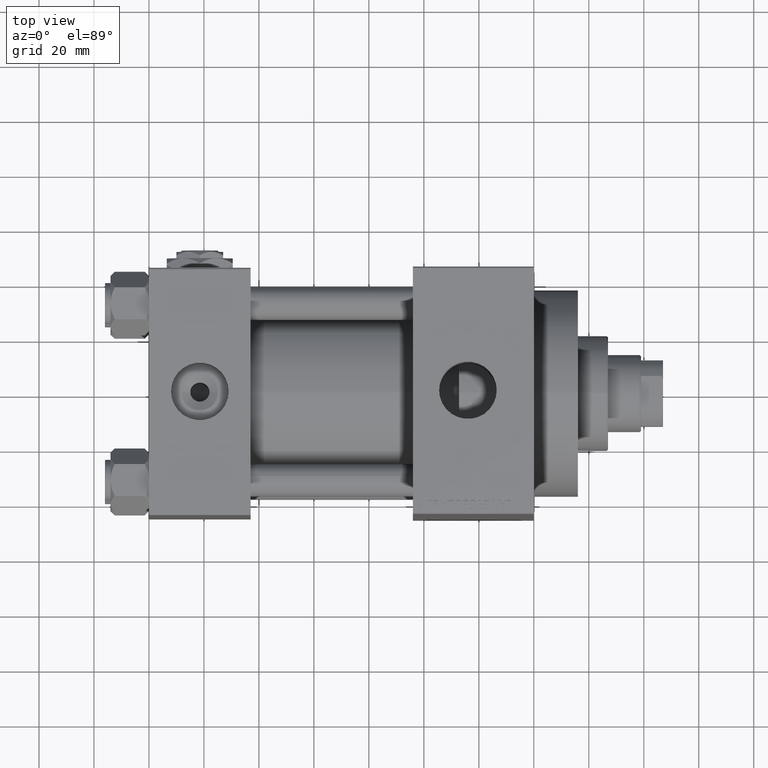
[diagram: clean part render]
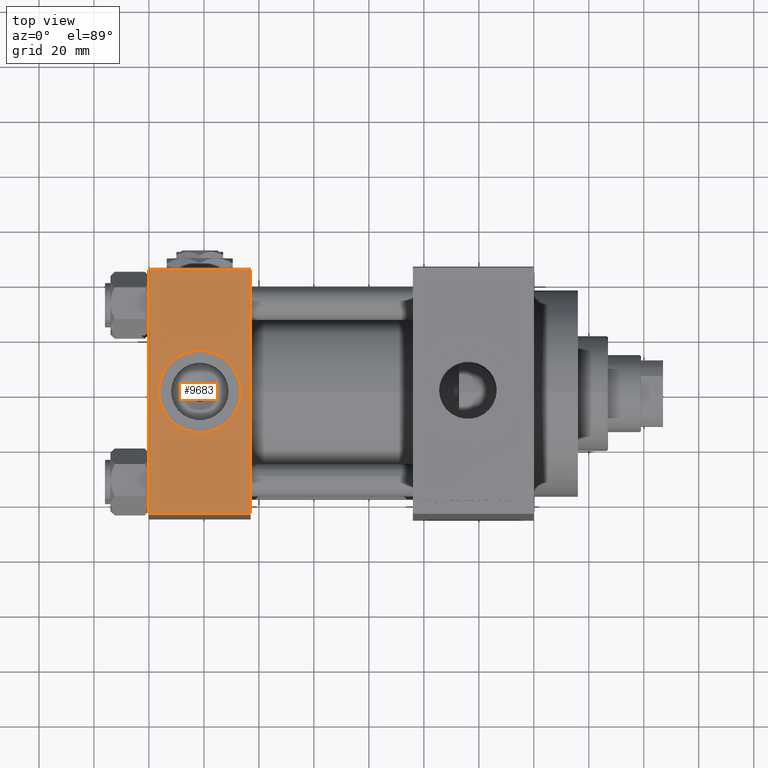
[diagram: same view with one face highlighted and labeled with its STEP entity id]
A machine part, top view. The second image highlights one B-rep face of the part: STEP entity #9683.
In plain terms, the highlighted planar face has unit normal (0, 0, -1).
Its self-contained STEP definition (entity closure, byte-faithful):
#191 = EDGE_CURVE ( 'NONE', #15757, #7256, #12706, .T. ) ;
#1018 = CARTESIAN_POINT ( 'NONE',  ( 37.00000000000000000, 44.99999999999998579, 45.00000000000001421 ) ) ;
#1613 = VERTEX_POINT ( 'NONE', #29606 ) ;
#2000 = CIRCLE ( 'NONE', #13887, 15.00000000000000355 ) ;
#2224 = DIRECTION ( 'NONE',  ( 1.000000000000000000, 0.000000000000000000, 0.000000000000000000 ) ) ;
#2847 = ORIENTED_EDGE ( 'NONE', *, *, #191, .T. ) ;
#4998 = DIRECTION ( 'NONE',  ( 0.000000000000000000, -1.000000000000000000, -1.541976423090495387E-16 ) ) ;
#5940 = EDGE_CURVE ( 'NONE', #34713, #36108, #9208, .T. ) ;
#6201 = CARTESIAN_POINT ( 'NONE',  ( 18.50000000000000000, -8.673617379884038628E-15, 45.00000000000000711 ) ) ;
#6848 = DIRECTION ( 'NONE',  ( 0.000000000000000000, 1.541976423090495633E-16, -1.000000000000000000 ) ) ;
#7256 = VERTEX_POINT ( 'NONE', #23281 ) ;
#8526 = VECTOR ( 'NONE', #16373, 1000.000000000000000 ) ;
#9139 = CIRCLE ( 'NONE', #47063, 15.00000000000000355 ) ;
#9208 = LINE ( 'NONE', #1018, #36823 ) ;
#9226 = EDGE_LOOP ( 'NONE', ( #37231, #34209 ) ) ;
#9323 = AXIS2_PLACEMENT_3D ( 'NONE', #25654, #6848, #26149 ) ;
#9683 = ADVANCED_FACE ( 'NONE', ( #14271, #29369 ), #44456, .F. ) ;
#11638 = VECTOR ( 'NONE', #31876, 1000.000000000000000 ) ;
#12438 = CARTESIAN_POINT ( 'NONE',  ( 0.000000000000000000, 44.49999999999998579, 45.00000000000001421 ) ) ;
#12706 = LINE ( 'NONE', #27800, #31172 ) ;
#13887 = AXIS2_PLACEMENT_3D ( 'NONE', #6201, #24038, #2224 ) ;
#14271 = FACE_BOUND ( 'NONE', #9226, .T. ) ;
#15155 = ORIENTED_EDGE ( 'NONE', *, *, #5940, .F. ) ;
#15757 = VERTEX_POINT ( 'NONE', #12438 ) ;
#16373 = DIRECTION ( 'NONE',  ( -1.000000000000000000, 0.000000000000000000, 0.000000000000000000 ) ) ;
#16536 = CARTESIAN_POINT ( 'NONE',  ( 18.50000000000000000, -8.673617379884038628E-15, 45.00000000000000711 ) ) ;
#17490 = DIRECTION ( 'NONE',  ( 1.000000000000000000, 0.000000000000000000, 0.000000000000000000 ) ) ;
#18986 = CARTESIAN_POINT ( 'NONE',  ( 3.499999999999997780, -6.836647181163008250E-15, 45.00000000000000711 ) ) ;
#20075 = VERTEX_POINT ( 'NONE', #18986 ) ;
#21951 = EDGE_CURVE ( 'NONE', #20075, #1613, #9139, .T. ) ;
#23281 = CARTESIAN_POINT ( 'NONE',  ( 0.000000000000000000, -44.49999999999995737, 45.00000000000000000 ) ) ;
#23951 = ORIENTED_EDGE ( 'NONE', *, *, #29424, .T. ) ;
#24038 = DIRECTION ( 'NONE',  ( 0.000000000000000000, 0.000000000000000000, 1.000000000000000000 ) ) ;
#25654 = CARTESIAN_POINT ( 'NONE',  ( 37.00000000000000000, 44.99999999999998579, 45.00000000000001421 ) ) ;
#25831 = CARTESIAN_POINT ( 'NONE',  ( 37.00000000000000000, 44.49999999999998579, 45.00000000000001421 ) ) ;
#26149 = DIRECTION ( 'NONE',  ( 0.000000000000000000, 1.000000000000000000, 1.541976423090495633E-16 ) ) ;
#26656 = EDGE_CURVE ( 'NONE', #34713, #15757, #46563, .T. ) ;
#27800 = CARTESIAN_POINT ( 'NONE',  ( 0.000000000000000000, 44.99999999999998579, 45.00000000000001421 ) ) ;
#27991 = CARTESIAN_POINT ( 'NONE',  ( 0.000000000000000000, 44.49999999999998579, 45.00000000000001421 ) ) ;
#28140 = EDGE_LOOP ( 'NONE', ( #2847, #23951, #15155, #41065 ) ) ;
#29369 = FACE_OUTER_BOUND ( 'NONE', #28140, .T. ) ;
#29424 = EDGE_CURVE ( 'NONE', #7256, #36108, #31647, .T. ) ;
#29606 = CARTESIAN_POINT ( 'NONE',  ( 33.50000000000000000, -8.673617379884038628E-15, 45.00000000000000711 ) ) ;
#31172 = VECTOR ( 'NONE', #42882, 1000.000000000000000 ) ;
#31647 = LINE ( 'NONE', #46726, #11638 ) ;
#31876 = DIRECTION ( 'NONE',  ( 1.000000000000000000, 0.000000000000000000, 0.000000000000000000 ) ) ;
#34209 = ORIENTED_EDGE ( 'NONE', *, *, #21951, .F. ) ;
#34713 = VERTEX_POINT ( 'NONE', #25831 ) ;
#36108 = VERTEX_POINT ( 'NONE', #37720 ) ;
#36823 = VECTOR ( 'NONE', #4998, 1000.000000000000000 ) ;
#37231 = ORIENTED_EDGE ( 'NONE', *, *, #47020, .F. ) ;
#37720 = CARTESIAN_POINT ( 'NONE',  ( 37.00000000000000000, -44.49999999999995737, 45.00000000000000000 ) ) ;
#41065 = ORIENTED_EDGE ( 'NONE', *, *, #26656, .T. ) ;
#42882 = DIRECTION ( 'NONE',  ( 0.000000000000000000, -1.000000000000000000, -1.541976423090495387E-16 ) ) ;
#44456 = PLANE ( 'NONE',  #9323 ) ;
#46563 = LINE ( 'NONE', #27991, #8526 ) ;
#46726 = CARTESIAN_POINT ( 'NONE',  ( 37.00000000000000000, -44.49999999999998579, 45.00000000000000000 ) ) ;
#47020 = EDGE_CURVE ( 'NONE', #1613, #20075, #2000, .T. ) ;
#47063 = AXIS2_PLACEMENT_3D ( 'NONE', #16536, #47199, #17490 ) ;
#47199 = DIRECTION ( 'NONE',  ( 0.000000000000000000, 0.000000000000000000, 1.000000000000000000 ) ) ;